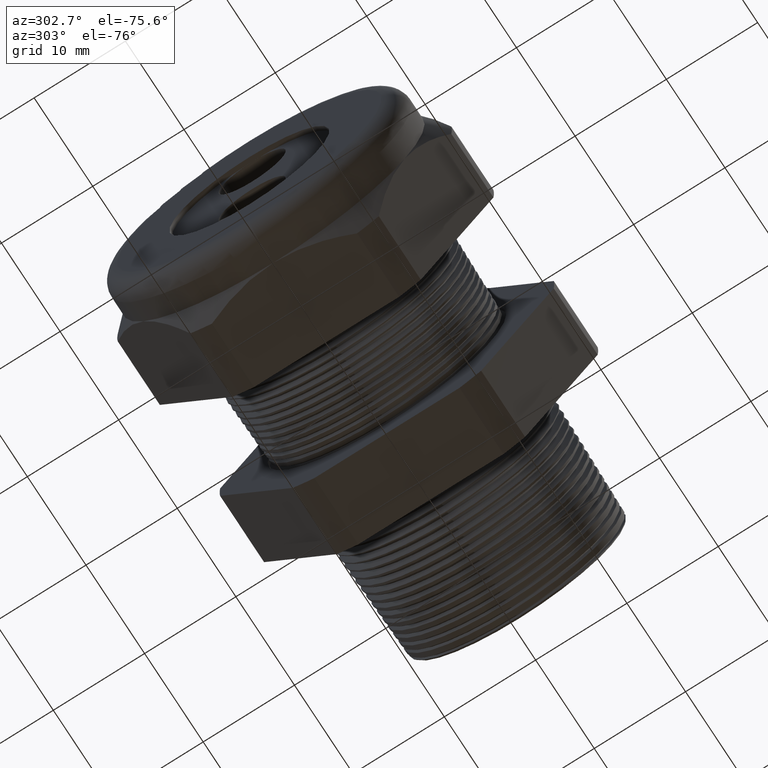
[diagram: clean part render]
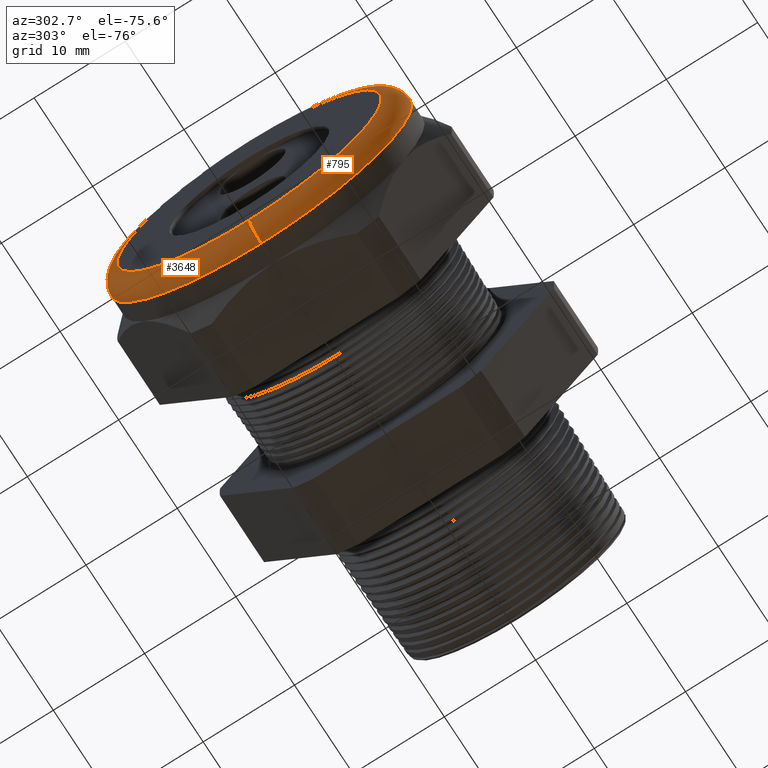
[diagram: same view with one multi-face feature highlighted, each face labeled with its STEP entity id]
A machine part, auxiliary view. The highlighted faces form ONE feature: a constant-radius fillet chain: 2 tangent blend faces with common blend radius 2.032 mm. The faces share edges in the B-rep.
Their STEP definitions:
[1] entity #3648 (Torus):
#3633 = VERTEX_POINT ( 'NONE', #4711 ) ;
#3637 = ORIENTED_EDGE ( 'NONE', *, *, #3640, .F. ) ;
#3640 = EDGE_CURVE ( 'NONE', #3633, #3645, #4701, .T. ) ;
#3641 = EDGE_CURVE ( 'NONE', #3643, #3645, #4696, .T. ) ;
#3642 = VERTEX_POINT ( 'NONE', #4691 ) ;
#3643 = VERTEX_POINT ( 'NONE', #4690 ) ;
#3644 = ORIENTED_EDGE ( 'NONE', *, *, #3641, .T. ) ;
#3645 = VERTEX_POINT ( 'NONE', #4689 ) ;
#3646 = EDGE_CURVE ( 'NONE', #3643, #3642, #4687, .T. ) ;
#3648 = ADVANCED_FACE ( 'NONE', ( #4688 ), #4744, .T. ) ;
#3654 = ORIENTED_EDGE ( 'NONE', *, *, #3646, .F. ) ;
#3656 = EDGE_LOOP ( 'NONE', ( #3654, #3644, #3637, #3664 ) ) ;
#3663 = EDGE_CURVE ( 'NONE', #3642, #3633, #4780, .T. ) ;
#3664 = ORIENTED_EDGE ( 'NONE', *, *, #3663, .F. ) ;
#4685 = CARTESIAN_POINT ( 'NONE',  ( -1.450000000000000400, 0.0000000000000000000, 0.0000000000000000000 ) ) ;
#4686 = AXIS2_PLACEMENT_3D ( 'NONE', #4685, #4747, #4746 ) ;
#4687 = CIRCLE ( 'NONE', #4686, 0.6500000000000001300 ) ;
#4688 = FACE_OUTER_BOUND ( 'NONE', #3656, .T. ) ;
#4689 = CARTESIAN_POINT ( 'NONE',  ( -1.530000000000000200, 7.470345474798856500E-017, -0.5700000000000001700 ) ) ;
#4690 = CARTESIAN_POINT ( 'NONE',  ( -1.450000000000000400, 0.0000000000000000000, -0.6500000000000001300 ) ) ;
#4691 = CARTESIAN_POINT ( 'NONE',  ( -1.450000000000000400, 7.960204194457797900E-017, 0.6500000000000001300 ) ) ;
#4692 = DIRECTION ( 'NONE',  ( 0.0000000000000000000, -1.224646799147353900E-016, 1.000000000000000000 ) ) ;
#4693 = DIRECTION ( 'NONE',  ( 0.0000000000000000000, 1.000000000000000000, 1.224646799147353200E-016 ) ) ;
#4694 = CARTESIAN_POINT ( 'NONE',  ( -1.450000000000000400, 6.980486755139915100E-017, -0.5700000000000001700 ) ) ;
#4695 = AXIS2_PLACEMENT_3D ( 'NONE', #4694, #4693, #4692 ) ;
#4696 = CIRCLE ( 'NONE', #4695, 0.07999999999999996000 ) ;
#4697 = DIRECTION ( 'NONE',  ( 0.0000000000000000000, 0.0000000000000000000, 1.000000000000000000 ) ) ;
#4698 = DIRECTION ( 'NONE',  ( -1.000000000000000000, 0.0000000000000000000, 0.0000000000000000000 ) ) ;
#4699 = CARTESIAN_POINT ( 'NONE',  ( -1.530000000000000200, 0.0000000000000000000, 0.0000000000000000000 ) ) ;
#4700 = AXIS2_PLACEMENT_3D ( 'NONE', #4699, #4698, #4697 ) ;
#4701 = CIRCLE ( 'NONE', #4700, 0.5700000000000001700 ) ;
#4711 = CARTESIAN_POINT ( 'NONE',  ( -1.530000000000000200, 0.0000000000000000000, 0.5700000000000001700 ) ) ;
#4721 = CARTESIAN_POINT ( 'NONE',  ( -1.450000000000000400, 0.0000000000000000000, 0.5700000000000001700 ) ) ;
#4741 = DIRECTION ( 'NONE',  ( 0.0000000000000000000, 0.0000000000000000000, 1.000000000000000000 ) ) ;
#4742 = DIRECTION ( 'NONE',  ( -1.000000000000000000, 0.0000000000000000000, 0.0000000000000000000 ) ) ;
#4743 = AXIS2_PLACEMENT_3D ( 'NONE', #4745, #4742, #4741 ) ;
#4744 = TOROIDAL_SURFACE ( 'NONE', #4743, 0.5700000000000001700, 0.08000000000000000200 ) ;
#4745 = CARTESIAN_POINT ( 'NONE',  ( -1.450000000000000400, 0.0000000000000000000, 0.0000000000000000000 ) ) ;
#4746 = DIRECTION ( 'NONE',  ( 0.0000000000000000000, 0.0000000000000000000, 1.000000000000000000 ) ) ;
#4747 = DIRECTION ( 'NONE',  ( 1.000000000000000000, 0.0000000000000000000, 0.0000000000000000000 ) ) ;
#4777 = DIRECTION ( 'NONE',  ( 0.0000000000000000000, 0.0000000000000000000, -1.000000000000000000 ) ) ;
#4778 = DIRECTION ( 'NONE',  ( 0.0000000000000000000, -1.000000000000000000, 0.0000000000000000000 ) ) ;
#4779 = AXIS2_PLACEMENT_3D ( 'NONE', #4721, #4778, #4777 ) ;
#4780 = CIRCLE ( 'NONE', #4779, 0.07999999999999996000 ) ;
[2] entity #795 (Torus):
#183 = ORIENTED_EDGE ( 'NONE', *, *, #702, .F. ) ;
#642 = EDGE_CURVE ( 'NONE', #3645, #3633, #2599, .T. ) ;
#702 = EDGE_CURVE ( 'NONE', #3642, #3643, #2751, .T. ) ;
#795 = ADVANCED_FACE ( 'NONE', ( #2917 ), #2912, .T. ) ;
#796 = EDGE_LOOP ( 'NONE', ( #797, #183, #857, #858 ) ) ;
#797 = ORIENTED_EDGE ( 'NONE', *, *, #3641, .F. ) ;
#857 = ORIENTED_EDGE ( 'NONE', *, *, #3663, .T. ) ;
#858 = ORIENTED_EDGE ( 'NONE', *, *, #642, .F. ) ;
#2595 = DIRECTION ( 'NONE',  ( 0.0000000000000000000, 0.0000000000000000000, 1.000000000000000000 ) ) ;
#2596 = DIRECTION ( 'NONE',  ( -1.000000000000000000, 0.0000000000000000000, 0.0000000000000000000 ) ) ;
#2597 = CARTESIAN_POINT ( 'NONE',  ( -1.530000000000000200, 0.0000000000000000000, 0.0000000000000000000 ) ) ;
#2598 = AXIS2_PLACEMENT_3D ( 'NONE', #2597, #2596, #2595 ) ;
#2599 = CIRCLE ( 'NONE', #2598, 0.5700000000000001700 ) ;
#2747 = DIRECTION ( 'NONE',  ( 0.0000000000000000000, 0.0000000000000000000, 1.000000000000000000 ) ) ;
#2748 = DIRECTION ( 'NONE',  ( 1.000000000000000000, 0.0000000000000000000, 0.0000000000000000000 ) ) ;
#2749 = CARTESIAN_POINT ( 'NONE',  ( -1.450000000000000400, 0.0000000000000000000, 0.0000000000000000000 ) ) ;
#2750 = AXIS2_PLACEMENT_3D ( 'NONE', #2749, #2748, #2747 ) ;
#2751 = CIRCLE ( 'NONE', #2750, 0.6500000000000001300 ) ;
#2908 = DIRECTION ( 'NONE',  ( 0.0000000000000000000, 0.0000000000000000000, 1.000000000000000000 ) ) ;
#2909 = DIRECTION ( 'NONE',  ( -1.000000000000000000, 0.0000000000000000000, 0.0000000000000000000 ) ) ;
#2910 = CARTESIAN_POINT ( 'NONE',  ( -1.450000000000000400, 0.0000000000000000000, 0.0000000000000000000 ) ) ;
#2911 = AXIS2_PLACEMENT_3D ( 'NONE', #2910, #2909, #2908 ) ;
#2912 = TOROIDAL_SURFACE ( 'NONE', #2911, 0.5700000000000001700, 0.08000000000000000200 ) ;
#2917 = FACE_OUTER_BOUND ( 'NONE', #796, .T. ) ;
#3633 = VERTEX_POINT ( 'NONE', #4711 ) ;
#3641 = EDGE_CURVE ( 'NONE', #3643, #3645, #4696, .T. ) ;
#3642 = VERTEX_POINT ( 'NONE', #4691 ) ;
#3643 = VERTEX_POINT ( 'NONE', #4690 ) ;
#3645 = VERTEX_POINT ( 'NONE', #4689 ) ;
#3663 = EDGE_CURVE ( 'NONE', #3642, #3633, #4780, .T. ) ;
#4689 = CARTESIAN_POINT ( 'NONE',  ( -1.530000000000000200, 7.470345474798856500E-017, -0.5700000000000001700 ) ) ;
#4690 = CARTESIAN_POINT ( 'NONE',  ( -1.450000000000000400, 0.0000000000000000000, -0.6500000000000001300 ) ) ;
#4691 = CARTESIAN_POINT ( 'NONE',  ( -1.450000000000000400, 7.960204194457797900E-017, 0.6500000000000001300 ) ) ;
#4692 = DIRECTION ( 'NONE',  ( 0.0000000000000000000, -1.224646799147353900E-016, 1.000000000000000000 ) ) ;
#4693 = DIRECTION ( 'NONE',  ( 0.0000000000000000000, 1.000000000000000000, 1.224646799147353200E-016 ) ) ;
#4694 = CARTESIAN_POINT ( 'NONE',  ( -1.450000000000000400, 6.980486755139915100E-017, -0.5700000000000001700 ) ) ;
#4695 = AXIS2_PLACEMENT_3D ( 'NONE', #4694, #4693, #4692 ) ;
#4696 = CIRCLE ( 'NONE', #4695, 0.07999999999999996000 ) ;
#4711 = CARTESIAN_POINT ( 'NONE',  ( -1.530000000000000200, 0.0000000000000000000, 0.5700000000000001700 ) ) ;
#4721 = CARTESIAN_POINT ( 'NONE',  ( -1.450000000000000400, 0.0000000000000000000, 0.5700000000000001700 ) ) ;
#4777 = DIRECTION ( 'NONE',  ( 0.0000000000000000000, 0.0000000000000000000, -1.000000000000000000 ) ) ;
#4778 = DIRECTION ( 'NONE',  ( 0.0000000000000000000, -1.000000000000000000, 0.0000000000000000000 ) ) ;
#4779 = AXIS2_PLACEMENT_3D ( 'NONE', #4721, #4778, #4777 ) ;
#4780 = CIRCLE ( 'NONE', #4779, 0.07999999999999996000 ) ;